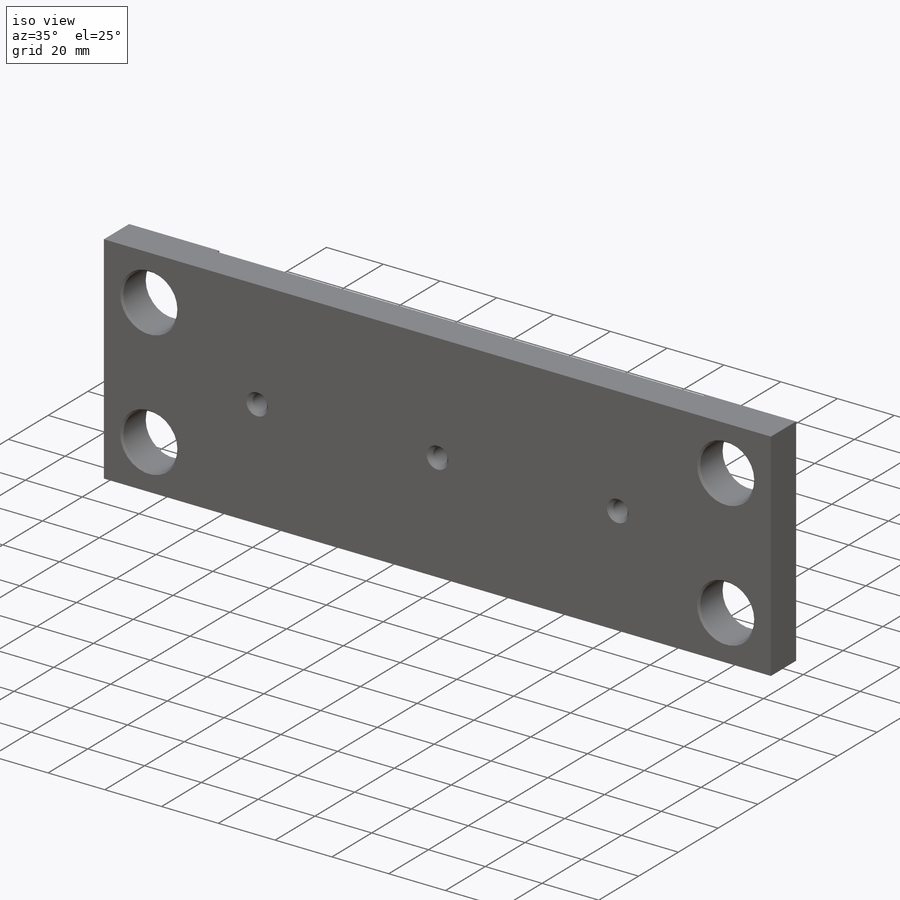
[diagram: iso view]
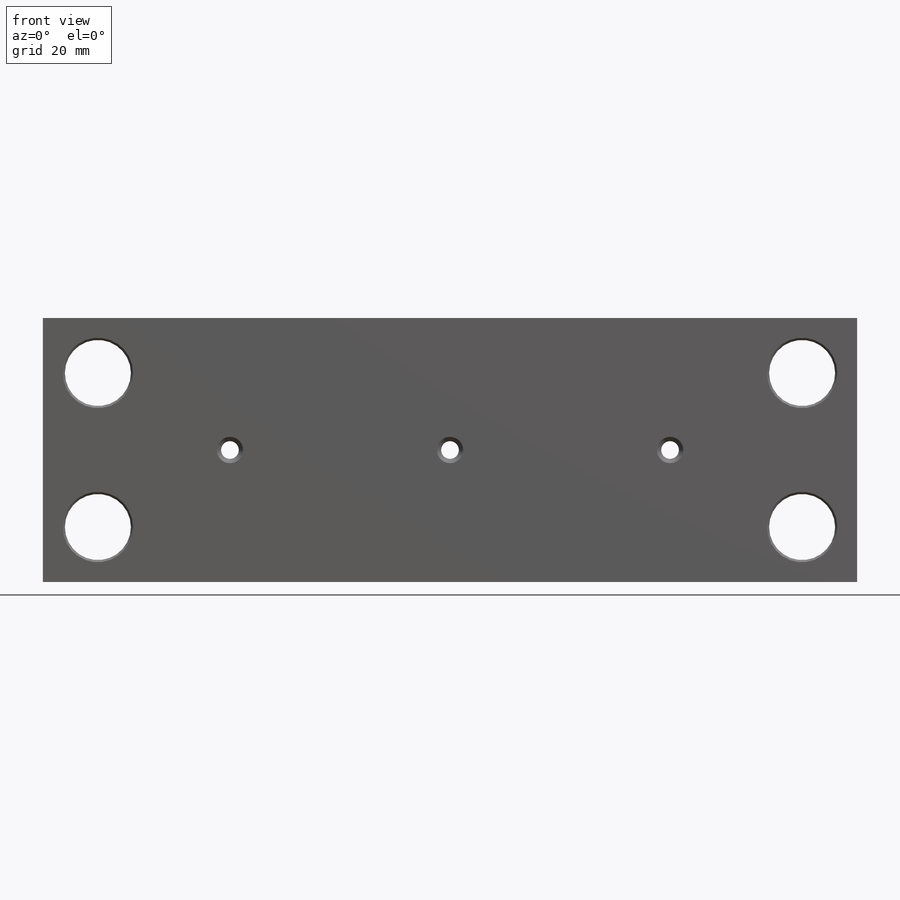
[diagram: front view]
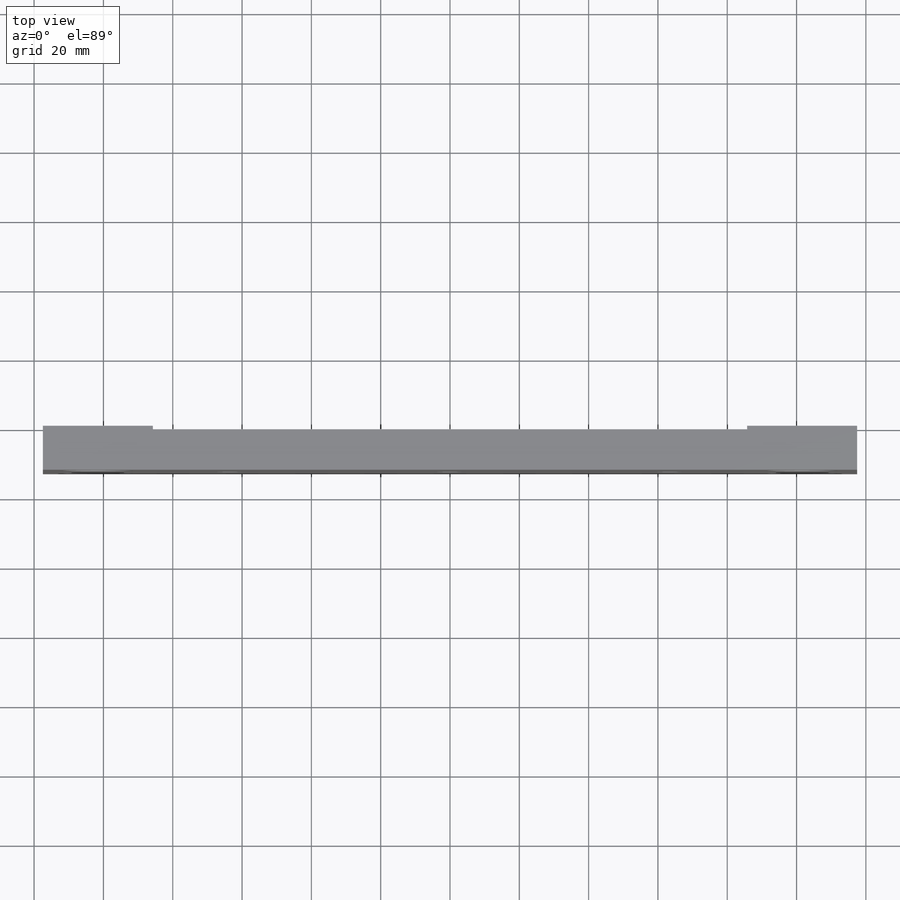
[diagram: top view]
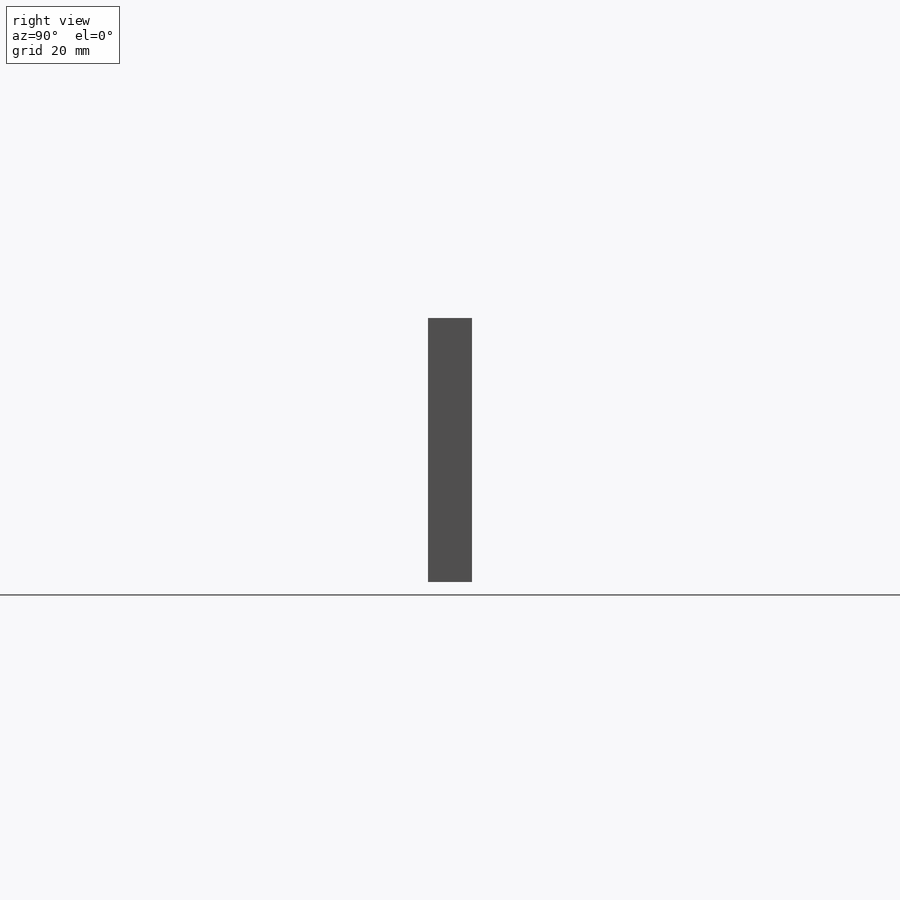
[diagram: right view]
SOLIDWORKS PART (.sldprt)
format: sldprt  version: not decoded by parser v0  size: 302,592 bytes
history: native  units: mm
features: sketch x6, thread x3, hole x2, material x1, extrude x1, cut_extrude x1 + 1 further entry (+13 scaffold rows collapsed)
feature tree (28):
  scaffold x13  (default folders/planes/origin — collapsed)
  material  "AISI 1018 Steel, Cold Rolled"
  "Origin"  ID=-1
  sketch  "Sketch1"  dims[D1=234.95mm D2=76.2mm]
  extrude  "Extrude1"  Depth=12.7mm
  hole  "1/2 Clearance Hole1"  Diameter=19.05mm Depth=12.7mm
  sketch  "Sketch3"  dims[D1=203.2mm D2=44.45mm]
  sketch  "Sketch2"  dims[hole-wizard template sketch: 47 standard entries collapsed; hole parameters kept: c15.Thru Hole Depth=12.7mm c15.Near C'Sink Dia.=20.32mm c15.D4=~3.666174mm c15.Near C'Sink Angle=82.0deg c15.Far C'Sink Dia.=20.32mm c15.D6=~9.919017mm c15.Far C'Sink Angle=82.0deg]
  sketch  "Sketch6"  dims[D1=31.75mm]
  cut_extrude  "Cut-Extrude1"  Depth=1.016mm
  hole  "1/4-20 Tapped Hole1"  [1 undecoded]
  sketch  "Sketch5"  dims[D1=127.0mm]
  thread  "Hole Thread1"  Diameter=6.35mm  [1 undecoded]
  thread  "Hole Thread2"  Diameter=6.35mm  [1 undecoded]
  thread  "Hole Thread3"  Diameter=6.35mm  [1 undecoded]
  sketch  "Sketch4"  dims[hole-wizard template sketch: 47 standard entries collapsed; hole parameters kept: c15.Thru Tap Drill Depth=11.684mm c15.Near C'Sink Dia.=7.62mm c15.D4=~3.666174mm c15.Near C'Sink Angle=82.0deg c15.Far C'Sink Dia.=7.62mm c15.D6=~9.919017mm c15.Far C'Sink Angle=82.0deg]
decode coverage: 12 of 13 modeling features carry decoded parameters; 1 rows unclassified (native names shown)
note: ~ marks probable driven/reference dimensions
note: 4 parameter values undecoded
note: suppression state not decoded; provenance and decode notes live in map.json
